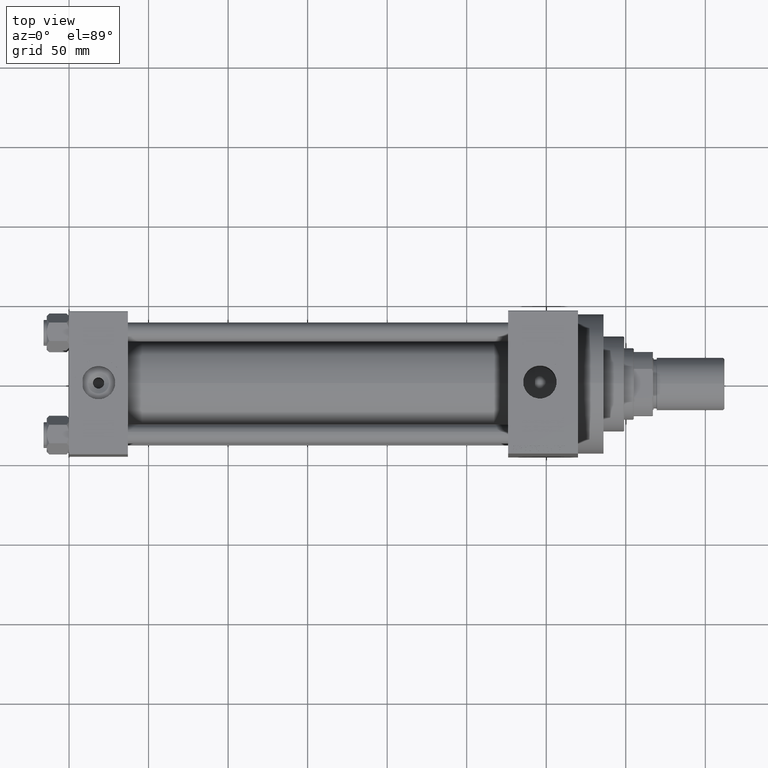
[diagram: clean part render]
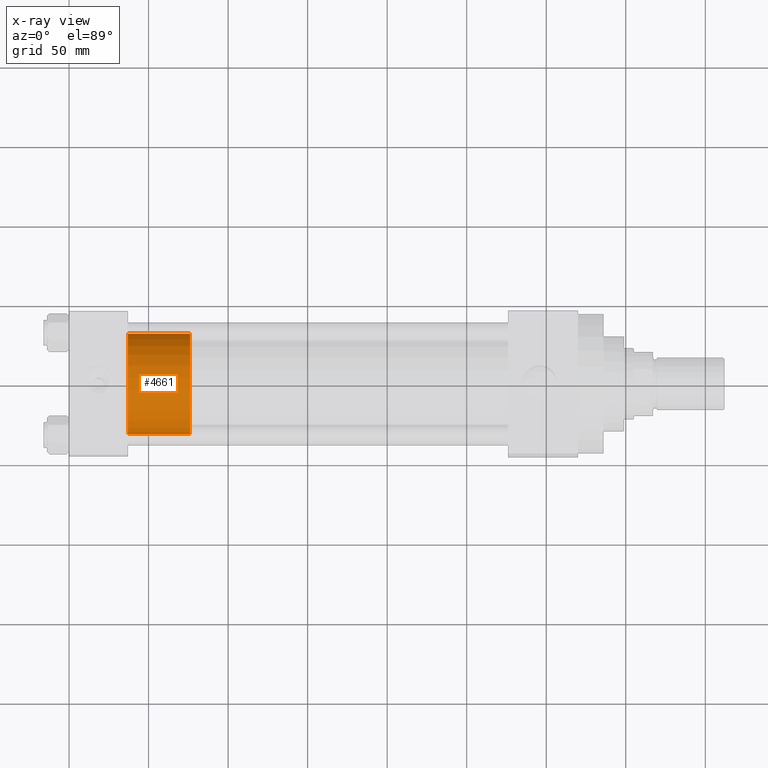
[diagram: x-ray — body ghosted, one internal face saturated and labeled with its STEP entity id]
A machine part, top view, then the same camera in x-ray: the body is ghosted and one INTERNAL B-rep face — a face not visible from any outside direction — is saturated and labeled: STEP entity #4661.
In plain terms, the highlighted cylindrical surface (partial cylindrical patch) has radius 31.5 mm, axis along (-1, 0, 0).
Its self-contained STEP definition (entity closure, byte-faithful):
#2041 = AXIS2_PLACEMENT_3D ( 'NONE', #7500, #22443, #14478 ) ;
#2377 = CARTESIAN_POINT ( 'NONE',  ( 0.000000000000000000, 0.000000000000000000, 0.000000000000000000 ) ) ;
#3079 = CARTESIAN_POINT ( 'NONE',  ( 31.50000000000000000, 3.857637417314162689E-15, 39.00000000000000000 ) ) ;
#4661 = ADVANCED_FACE ( 'NONE', ( #36898 ), #7258, .T. ) ;
#6221 = DIRECTION ( 'NONE',  ( -0.000000000000000000, -0.000000000000000000, -1.000000000000000000 ) ) ;
#6333 = LINE ( 'NONE', #35965, #17833 ) ;
#6577 = DIRECTION ( 'NONE',  ( -0.000000000000000000, -0.000000000000000000, -1.000000000000000000 ) ) ;
#7258 = CYLINDRICAL_SURFACE ( 'NONE', #2041, 31.50000000000000000 ) ;
#7500 = CARTESIAN_POINT ( 'NONE',  ( 0.000000000000000000, 0.000000000000000000, 39.00000000000000000 ) ) ;
#8316 = VERTEX_POINT ( 'NONE', #41173 ) ;
#8378 = VERTEX_POINT ( 'NONE', #9098 ) ;
#8608 = ORIENTED_EDGE ( 'NONE', *, *, #29389, .F. ) ;
#9098 = CARTESIAN_POINT ( 'NONE',  ( -31.50000000000000000, 0.000000000000000000, 39.00000000000000000 ) ) ;
#11963 = ORIENTED_EDGE ( 'NONE', *, *, #14116, .F. ) ;
#14116 = EDGE_CURVE ( 'NONE', #8316, #18103, #43797, .T. ) ;
#14478 = DIRECTION ( 'NONE',  ( -1.000000000000000000, 0.000000000000000000, 0.000000000000000000 ) ) ;
#15421 = AXIS2_PLACEMENT_3D ( 'NONE', #2377, #31754, #46457 ) ;
#17833 = VECTOR ( 'NONE', #6577, 1000.000000000000000 ) ;
#18103 = VERTEX_POINT ( 'NONE', #35110 ) ;
#21009 = ORIENTED_EDGE ( 'NONE', *, *, #31095, .T. ) ;
#22443 = DIRECTION ( 'NONE',  ( -0.000000000000000000, -0.000000000000000000, -1.000000000000000000 ) ) ;
#23096 = CIRCLE ( 'NONE', #15421, 31.50000000000000000 ) ;
#23160 = CARTESIAN_POINT ( 'NONE',  ( 0.000000000000000000, 0.000000000000000000, 39.00000000000000000 ) ) ;
#23168 = CIRCLE ( 'NONE', #23951, 31.50000000000000000 ) ;
#23951 = AXIS2_PLACEMENT_3D ( 'NONE', #23160, #38580, #31094 ) ;
#29389 = EDGE_CURVE ( 'NONE', #8378, #8316, #23168, .T. ) ;
#31094 = DIRECTION ( 'NONE',  ( 1.000000000000000000, 0.000000000000000000, 0.000000000000000000 ) ) ;
#31095 = EDGE_CURVE ( 'NONE', #44752, #18103, #23096, .T. ) ;
#31754 = DIRECTION ( 'NONE',  ( 0.000000000000000000, 0.000000000000000000, 1.000000000000000000 ) ) ;
#34327 = EDGE_CURVE ( 'NONE', #8378, #44752, #6333, .T. ) ;
#35110 = CARTESIAN_POINT ( 'NONE',  ( 31.50000000000000000, 3.857637417314162689E-15, 0.000000000000000000 ) ) ;
#35965 = CARTESIAN_POINT ( 'NONE',  ( -31.50000000000000000, 0.000000000000000000, 39.00000000000000000 ) ) ;
#36588 = CARTESIAN_POINT ( 'NONE',  ( -31.50000000000000000, 0.000000000000000000, 0.000000000000000000 ) ) ;
#36898 = FACE_OUTER_BOUND ( 'NONE', #40380, .T. ) ;
#38580 = DIRECTION ( 'NONE',  ( 0.000000000000000000, 0.000000000000000000, 1.000000000000000000 ) ) ;
#38817 = VECTOR ( 'NONE', #6221, 1000.000000000000000 ) ;
#40380 = EDGE_LOOP ( 'NONE', ( #11963, #8608, #45864, #21009 ) ) ;
#41173 = CARTESIAN_POINT ( 'NONE',  ( 31.50000000000000000, 3.857637417314162689E-15, 39.00000000000000000 ) ) ;
#43797 = LINE ( 'NONE', #3079, #38817 ) ;
#44752 = VERTEX_POINT ( 'NONE', #36588 ) ;
#45864 = ORIENTED_EDGE ( 'NONE', *, *, #34327, .T. ) ;
#46457 = DIRECTION ( 'NONE',  ( 1.000000000000000000, 0.000000000000000000, 0.000000000000000000 ) ) ;